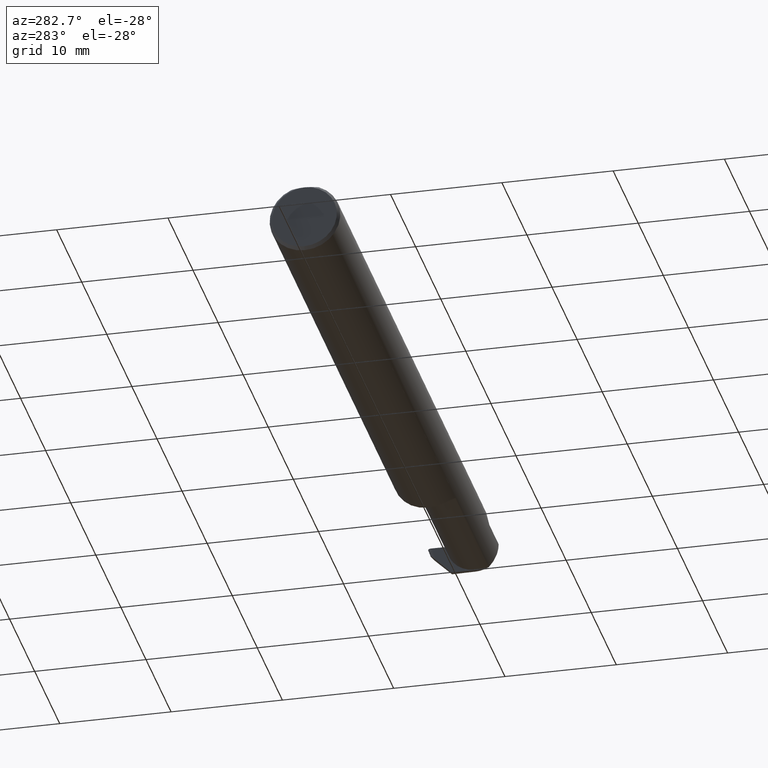
[diagram: clean part render]
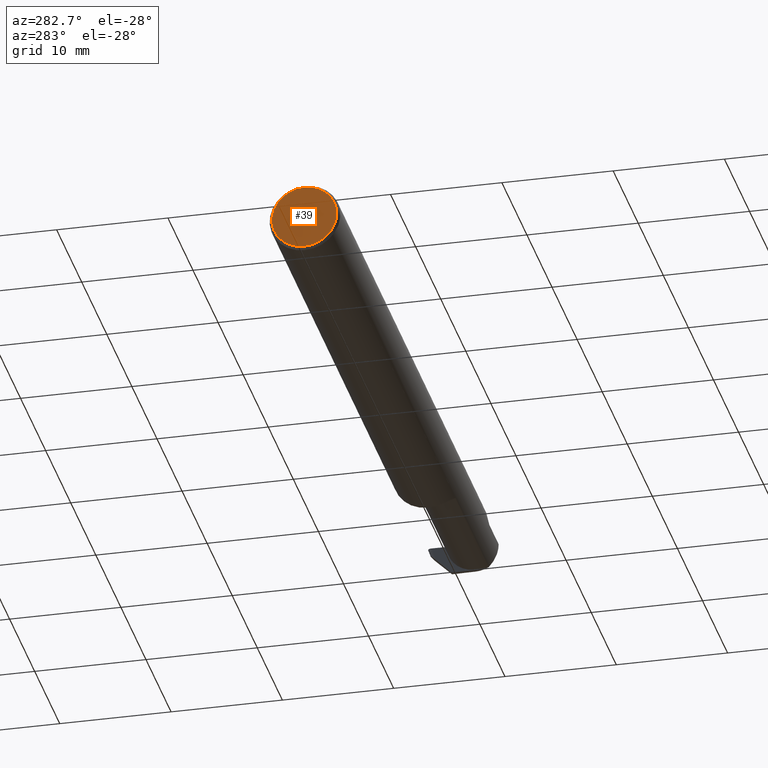
[diagram: same view with one face highlighted and labeled with its STEP entity id]
A machine part, auxiliary view. The second image highlights one B-rep face of the part: STEP entity #39.
In plain terms, the highlighted planar face has unit normal (1, 0, 0).
Its self-contained STEP definition (entity closure, byte-faithful):
#29 = CARTESIAN_POINT ( 'NONE',  ( 0.000000000000000000, 0.000000000000000000, 0.000000000000000000 ) ) ;
#39 = ADVANCED_FACE ( 'NONE', ( #108 ), #700, .F. ) ;
#43 = CIRCLE ( 'NONE', #490, 0.1149999999999997274 ) ;
#79 = DIRECTION ( 'NONE',  ( 0.000000000000000000, 0.000000000000000000, -1.000000000000000000 ) ) ;
#108 = FACE_OUTER_BOUND ( 'NONE', #226, .T. ) ;
#116 = AXIS2_PLACEMENT_3D ( 'NONE', #29, #240, #176 ) ;
#126 = CARTESIAN_POINT ( 'NONE',  ( 0.000000000000000000, 0.000000000000000000, -0.1149999999999997274 ) ) ;
#176 = DIRECTION ( 'NONE',  ( 0.000000000000000000, 0.000000000000000000, -1.000000000000000000 ) ) ;
#180 = VERTEX_POINT ( 'NONE', #126 ) ;
#226 = EDGE_LOOP ( 'NONE', ( #523, #237 ) ) ;
#237 = ORIENTED_EDGE ( 'NONE', *, *, #269, .T. ) ;
#240 = DIRECTION ( 'NONE',  ( -1.000000000000000000, -0.000000000000000000, -0.000000000000000000 ) ) ;
#269 = EDGE_CURVE ( 'NONE', #180, #581, #43, .T. ) ;
#282 = DIRECTION ( 'NONE',  ( -1.000000000000000000, -0.000000000000000000, -0.000000000000000000 ) ) ;
#357 = EDGE_CURVE ( 'NONE', #581, #180, #458, .T. ) ;
#369 = CARTESIAN_POINT ( 'NONE',  ( 0.000000000000000000, 0.000000000000000000, 0.000000000000000000 ) ) ;
#457 = CARTESIAN_POINT ( 'NONE',  ( 0.000000000000000000, 0.000000000000000000, 0.000000000000000000 ) ) ;
#458 = CIRCLE ( 'NONE', #116, 0.1149999999999997274 ) ;
#467 = DIRECTION ( 'NONE',  ( 0.000000000000000000, 0.000000000000000000, -1.000000000000000000 ) ) ;
#490 = AXIS2_PLACEMENT_3D ( 'NONE', #457, #282, #79 ) ;
#523 = ORIENTED_EDGE ( 'NONE', *, *, #357, .T. ) ;
#548 = AXIS2_PLACEMENT_3D ( 'NONE', #369, #575, #467 ) ;
#575 = DIRECTION ( 'NONE',  ( 1.000000000000000000, 0.000000000000000000, 0.000000000000000000 ) ) ;
#576 = CARTESIAN_POINT ( 'NONE',  ( 0.000000000000000000, 3.414809992080329023E-17, 0.1149999999999999217 ) ) ;
#581 = VERTEX_POINT ( 'NONE', #576 ) ;
#700 = PLANE ( 'NONE',  #548 ) ;